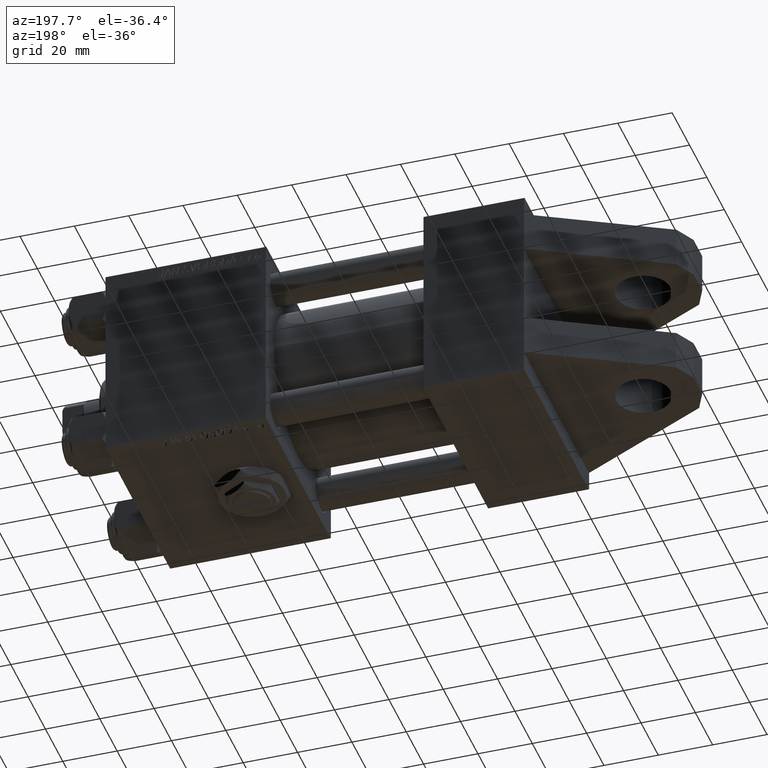
[diagram: clean part render]
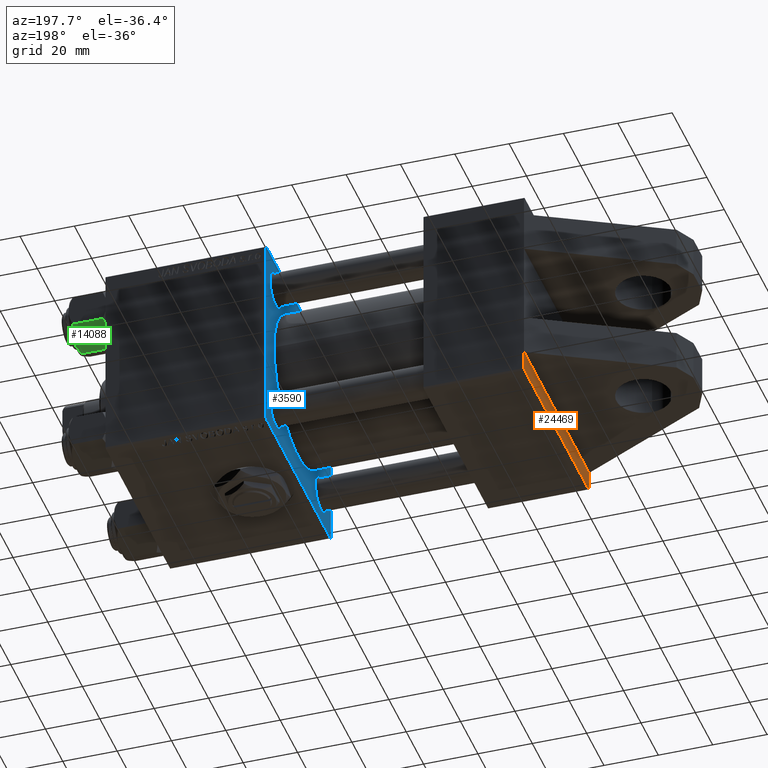
[diagram: same view with three faces highlighted in distinct colors, each labeled with its STEP entity id]
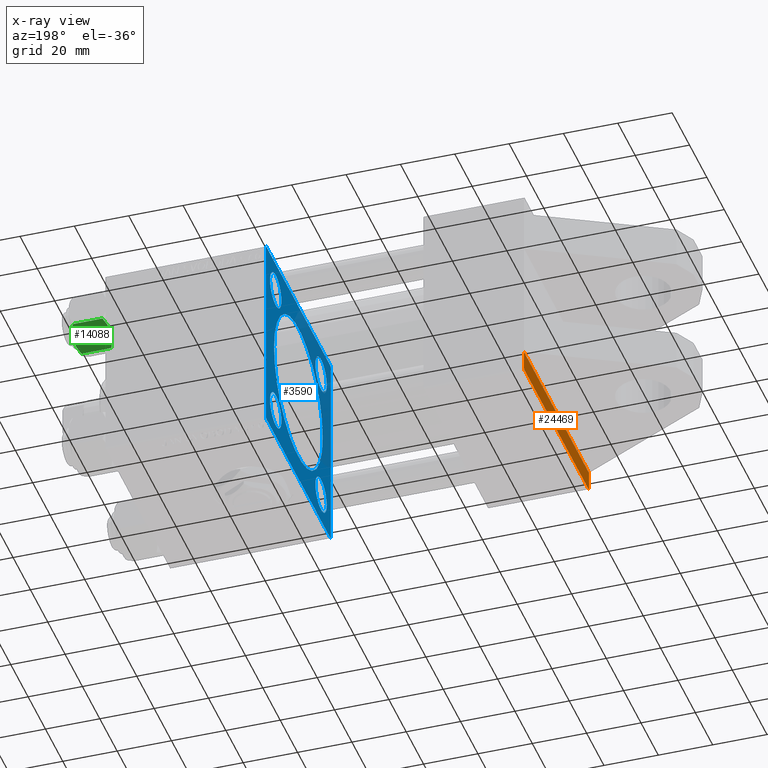
[diagram: x-ray of the same camera — body ghosted, the three highlighted faces saturated]
A machine part, auxiliary view with three faces highlighted in distinct colors.
The next image is the same camera in x-ray (body ghosted, the three faces saturated) — at least one of them is partly hidden behind the body in this view.
Their STEP definitions:

[orange] entity #24469 — the highlighted planar face has unit normal (-1, 0, -0).
#2164 = ORIENTED_EDGE ( 'NONE', *, *, #16810, .T. ) ;
#2198 = DIRECTION ( 'NONE',  ( -0.000000000000000000, -0.7071067811865474617, -0.7071067811865474617 ) ) ;
#2294 = ORIENTED_EDGE ( 'NONE', *, *, #35699, .F. ) ;
#2412 = EDGE_LOOP ( 'NONE', ( #40259, #2294, #2164, #19833, #47794, #49869 ) ) ;
#6769 = CARTESIAN_POINT ( 'NONE',  ( 0.000000000000000000, 0.000000000000000000, 0.000000000000000000 ) ) ;
#7034 = PLANE ( 'NONE',  #42660 ) ;
#11639 = CARTESIAN_POINT ( 'NONE',  ( 0.000000000000000000, 37.49999999999999289, 37.50000000000000000 ) ) ;
#11782 = CARTESIAN_POINT ( 'NONE',  ( 0.000000000000000000, 37.49999999999999289, 37.00000000000000000 ) ) ;
#12380 = CARTESIAN_POINT ( 'NONE',  ( 0.000000000000000000, 30.00000000000000000, 37.49999999999999289 ) ) ;
#12493 = VERTEX_POINT ( 'NONE', #25203 ) ;
#14072 = CARTESIAN_POINT ( 'NONE',  ( 0.000000000000000000, 30.00000000000000000, -37.50000000000000711 ) ) ;
#14389 = VERTEX_POINT ( 'NONE', #11782 ) ;
#14679 = VERTEX_POINT ( 'NONE', #15882 ) ;
#15503 = VECTOR ( 'NONE', #2198, 1000.000000000000114 ) ;
#15882 = CARTESIAN_POINT ( 'NONE',  ( 0.000000000000000000, 37.49999999999999289, -36.99999999999998579 ) ) ;
#16810 = EDGE_CURVE ( 'NONE', #38368, #14389, #24000, .T. ) ;
#19833 = ORIENTED_EDGE ( 'NONE', *, *, #31185, .T. ) ;
#21818 = EDGE_CURVE ( 'NONE', #12493, #34930, #48005, .T. ) ;
#22376 = DIRECTION ( 'NONE',  ( -1.000000000000000000, 0.000000000000000000, -0.000000000000000000 ) ) ;
#24000 = LINE ( 'NONE', #27391, #33429 ) ;
#24469 = ADVANCED_FACE ( 'NONE', ( #34840 ), #7034, .T. ) ;
#25203 = CARTESIAN_POINT ( 'NONE',  ( 0.000000000000000000, 30.00000000000000000, 37.50000000000000000 ) ) ;
#26419 = LINE ( 'NONE', #30582, #34639 ) ;
#27391 = CARTESIAN_POINT ( 'NONE',  ( 0.000000000000000000, 37.24999999999999289, 37.24999999999999289 ) ) ;
#28239 = DIRECTION ( 'NONE',  ( 0.000000000000000000, 0.000000000000000000, -1.000000000000000000 ) ) ;
#29218 = CARTESIAN_POINT ( 'NONE',  ( 0.000000000000000000, 37.24999999999998579, -37.24999999999998579 ) ) ;
#29682 = CARTESIAN_POINT ( 'NONE',  ( 0.000000000000000000, 37.49999999999999289, -37.50000000000000000 ) ) ;
#30265 = VERTEX_POINT ( 'NONE', #35990 ) ;
#30582 = CARTESIAN_POINT ( 'NONE',  ( 0.000000000000000000, 37.49999999999999289, 37.50000000000000000 ) ) ;
#30596 = EDGE_CURVE ( 'NONE', #30265, #34930, #33320, .T. ) ;
#31185 = EDGE_CURVE ( 'NONE', #14389, #14679, #47260, .T. ) ;
#31278 = VECTOR ( 'NONE', #33576, 1000.000000000000000 ) ;
#33320 = LINE ( 'NONE', #29682, #31278 ) ;
#33429 = VECTOR ( 'NONE', #39855, 1000.000000000000114 ) ;
#33576 = DIRECTION ( 'NONE',  ( 0.000000000000000000, -1.000000000000000000, -9.251858538542972814E-17 ) ) ;
#34632 = EDGE_CURVE ( 'NONE', #14679, #30265, #37789, .T. ) ;
#34639 = VECTOR ( 'NONE', #46187, 1000.000000000000000 ) ;
#34840 = FACE_OUTER_BOUND ( 'NONE', #2412, .T. ) ;
#34930 = VERTEX_POINT ( 'NONE', #14072 ) ;
#35080 = VECTOR ( 'NONE', #28239, 1000.000000000000000 ) ;
#35095 = DIRECTION ( 'NONE',  ( -0.000000000000000000, 0.000000000000000000, 1.000000000000000000 ) ) ;
#35699 = EDGE_CURVE ( 'NONE', #38368, #12493, #26419, .T. ) ;
#35990 = CARTESIAN_POINT ( 'NONE',  ( 0.000000000000000000, 36.99999999999997868, -37.50000000000000000 ) ) ;
#37789 = LINE ( 'NONE', #29218, #15503 ) ;
#38205 = CARTESIAN_POINT ( 'NONE',  ( 0.000000000000000000, 36.99999999999999289, 37.50000000000000000 ) ) ;
#38368 = VERTEX_POINT ( 'NONE', #38205 ) ;
#39184 = DIRECTION ( 'NONE',  ( 0.000000000000000000, 0.000000000000000000, -1.000000000000000000 ) ) ;
#39855 = DIRECTION ( 'NONE',  ( 0.000000000000000000, 0.7071067811865474617, -0.7071067811865474617 ) ) ;
#40259 = ORIENTED_EDGE ( 'NONE', *, *, #21818, .F. ) ;
#42660 = AXIS2_PLACEMENT_3D ( 'NONE', #6769, #22376, #35095 ) ;
#46187 = DIRECTION ( 'NONE',  ( 0.000000000000000000, -1.000000000000000000, -9.251858538542971581E-17 ) ) ;
#47260 = LINE ( 'NONE', #11639, #48693 ) ;
#47794 = ORIENTED_EDGE ( 'NONE', *, *, #34632, .T. ) ;
#48005 = LINE ( 'NONE', #12380, #35080 ) ;
#48693 = VECTOR ( 'NONE', #39184, 1000.000000000000000 ) ;
#49869 = ORIENTED_EDGE ( 'NONE', *, *, #30596, .T. ) ;

[blue] entity #3590 — the highlighted planar face has unit normal (-1, 0, 0).
#381 = DIRECTION ( 'NONE',  ( 1.000000000000000000, 0.000000000000000000, -0.000000000000000000 ) ) ;
#543 = VERTEX_POINT ( 'NONE', #41991 ) ;
#1125 = VECTOR ( 'NONE', #17124, 1000.000000000000000 ) ;
#1195 = FACE_BOUND ( 'NONE', #34460, .T. ) ;
#1279 = VERTEX_POINT ( 'NONE', #23147 ) ;
#1859 = CARTESIAN_POINT ( 'NONE',  ( 95.00000000000000000, 37.00000000000000000, -37.50000000000000000 ) ) ;
#2003 = VERTEX_POINT ( 'NONE', #13890 ) ;
#2508 = ORIENTED_EDGE ( 'NONE', *, *, #51390, .T. ) ;
#2919 = ORIENTED_EDGE ( 'NONE', *, *, #18931, .T. ) ;
#3093 = DIRECTION ( 'NONE',  ( 0.000000000000000000, -9.251858538542972814E-17, -1.000000000000000000 ) ) ;
#3188 = DIRECTION ( 'NONE',  ( 1.000000000000000000, 0.000000000000000000, -0.000000000000000000 ) ) ;
#3431 = DIRECTION ( 'NONE',  ( 0.000000000000000000, -0.7071067811865671127, 0.7071067811865279218 ) ) ;
#3590 = ADVANCED_FACE ( 'NONE', ( #44596, #1195, #24581, #12883, #24827, #8728 ), #13140, .T. ) ;
#4004 = EDGE_CURVE ( 'NONE', #15407, #23758, #16753, .T. ) ;
#4259 = VERTEX_POINT ( 'NONE', #14289 ) ;
#5076 = DIRECTION ( 'NONE',  ( -1.000000000000000000, -0.000000000000000000, 0.000000000000000000 ) ) ;
#5220 = AXIS2_PLACEMENT_3D ( 'NONE', #34937, #46654, #38315 ) ;
#5430 = ORIENTED_EDGE ( 'NONE', *, *, #21268, .T. ) ;
#5649 = ORIENTED_EDGE ( 'NONE', *, *, #8727, .T. ) ;
#5784 = VERTEX_POINT ( 'NONE', #13939 ) ;
#5975 = DIRECTION ( 'NONE',  ( 1.000000000000000000, 0.000000000000000000, -0.000000000000000000 ) ) ;
#5991 = AXIS2_PLACEMENT_3D ( 'NONE', #7003, #5975, #30410 ) ;
#6080 = AXIS2_PLACEMENT_3D ( 'NONE', #28665, #25000, #44518 ) ;
#6278 = DIRECTION ( 'NONE',  ( 1.000000000000000000, 0.000000000000000000, -0.000000000000000000 ) ) ;
#6804 = CARTESIAN_POINT ( 'NONE',  ( 95.00000000000000000, 26.14999999999999858, -26.15000000000000213 ) ) ;
#6846 = AXIS2_PLACEMENT_3D ( 'NONE', #12060, #381, #47416 ) ;
#6998 = CARTESIAN_POINT ( 'NONE',  ( 95.00000000000000000, 37.25000000000026290, -37.24999999999974420 ) ) ;
#7003 = CARTESIAN_POINT ( 'NONE',  ( 95.00000000000000000, 26.14999999999999858, 26.15000000000000213 ) ) ;
#7888 = DIRECTION ( 'NONE',  ( -0.000000000000000000, 0.7071067811865474617, 0.7071067811865474617 ) ) ;
#8064 = CARTESIAN_POINT ( 'NONE',  ( 95.00000000000000000, -3.469446951953614189E-15, 0.000000000000000000 ) ) ;
#8110 = VERTEX_POINT ( 'NONE', #30613 ) ;
#8285 = CARTESIAN_POINT ( 'NONE',  ( 95.00000000000000000, -26.14999999999999147, 19.64999999999999147 ) ) ;
#8318 = DIRECTION ( 'NONE',  ( 1.000000000000000000, 0.000000000000000000, 0.000000000000000000 ) ) ;
#8727 = EDGE_CURVE ( 'NONE', #23758, #15407, #35183, .T. ) ;
#8728 = FACE_OUTER_BOUND ( 'NONE', #49195, .T. ) ;
#9377 = CIRCLE ( 'NONE', #5220, 6.500000000000002665 ) ;
#10114 = VECTOR ( 'NONE', #3431, 1000.000000000000000 ) ;
#11200 = AXIS2_PLACEMENT_3D ( 'NONE', #13161, #48015, #16302 ) ;
#11288 = CARTESIAN_POINT ( 'NONE',  ( 95.00000000000000000, -37.24999999999997158, 37.24999999999997158 ) ) ;
#11869 = ORIENTED_EDGE ( 'NONE', *, *, #26417, .T. ) ;
#12060 = CARTESIAN_POINT ( 'NONE',  ( 95.00000000000000000, -26.15000000000000213, -26.15000000000000213 ) ) ;
#12883 = FACE_BOUND ( 'NONE', #43694, .T. ) ;
#12968 = CARTESIAN_POINT ( 'NONE',  ( 95.00000000000000000, 37.50000000000000000, 37.49999999999999289 ) ) ;
#13140 = PLANE ( 'NONE',  #18410 ) ;
#13161 = CARTESIAN_POINT ( 'NONE',  ( 95.00000000000000000, 26.14999999999999858, 26.15000000000000213 ) ) ;
#13338 = VERTEX_POINT ( 'NONE', #31296 ) ;
#13682 = CARTESIAN_POINT ( 'NONE',  ( 95.00000000000000000, 37.50000000000000000, 37.49999999999999289 ) ) ;
#13709 = ORIENTED_EDGE ( 'NONE', *, *, #14977, .T. ) ;
#13890 = CARTESIAN_POINT ( 'NONE',  ( 95.00000000000000000, 26.14999999999999858, 19.64999999999999858 ) ) ;
#13939 = CARTESIAN_POINT ( 'NONE',  ( 95.00000000000000000, -26.15000000000000213, -32.65000000000001279 ) ) ;
#14289 = CARTESIAN_POINT ( 'NONE',  ( 95.00000000000000000, -36.99999999999998579, -37.50000000000000000 ) ) ;
#14317 = EDGE_CURVE ( 'NONE', #20604, #21130, #23744, .T. ) ;
#14322 = EDGE_CURVE ( 'NONE', #43280, #8110, #35686, .T. ) ;
#14870 = DIRECTION ( 'NONE',  ( 0.000000000000000000, 0.000000000000000000, 1.000000000000000000 ) ) ;
#14977 = EDGE_CURVE ( 'NONE', #27776, #29657, #39215, .T. ) ;
#15094 = VECTOR ( 'NONE', #7888, 1000.000000000000114 ) ;
#15321 = VECTOR ( 'NONE', #44370, 1000.000000000000000 ) ;
#15407 = VERTEX_POINT ( 'NONE', #27315 ) ;
#16302 = DIRECTION ( 'NONE',  ( 0.000000000000000000, 0.000000000000000000, 1.000000000000000000 ) ) ;
#16753 = CIRCLE ( 'NONE', #45805, 6.500000000000008882 ) ;
#17124 = DIRECTION ( 'NONE',  ( 0.000000000000000000, -1.000000000000000000, -1.850371707708594316E-16 ) ) ;
#17696 = EDGE_CURVE ( 'NONE', #41126, #17884, #44266, .T. ) ;
#17884 = VERTEX_POINT ( 'NONE', #43704 ) ;
#18208 = CARTESIAN_POINT ( 'NONE',  ( 95.00000000000000000, 26.14999999999999858, 32.65000000000001279 ) ) ;
#18382 = EDGE_CURVE ( 'NONE', #49281, #1279, #9377, .T. ) ;
#18410 = AXIS2_PLACEMENT_3D ( 'NONE', #28742, #5076, #36770 ) ;
#18931 = EDGE_CURVE ( 'NONE', #4259, #543, #30215, .T. ) ;
#19079 = CARTESIAN_POINT ( 'NONE',  ( 95.00000000000000000, 37.00000000000000000, 37.49999999999999289 ) ) ;
#19425 = EDGE_CURVE ( 'NONE', #43280, #21130, #37627, .T. ) ;
#19779 = ORIENTED_EDGE ( 'NONE', *, *, #28252, .F. ) ;
#19828 = VERTEX_POINT ( 'NONE', #18208 ) ;
#20604 = VERTEX_POINT ( 'NONE', #50672 ) ;
#21130 = VERTEX_POINT ( 'NONE', #27086 ) ;
#21268 = EDGE_CURVE ( 'NONE', #2003, #19828, #37529, .T. ) ;
#22836 = CARTESIAN_POINT ( 'NONE',  ( 95.00000000000000000, -37.50000000000000000, 37.49999999999997868 ) ) ;
#22852 = AXIS2_PLACEMENT_3D ( 'NONE', #8064, #8318, #24164 ) ;
#23147 = CARTESIAN_POINT ( 'NONE',  ( 95.00000000000000000, -26.14999999999999147, 32.64999999999999858 ) ) ;
#23577 = AXIS2_PLACEMENT_3D ( 'NONE', #27099, #26838, #34883 ) ;
#23691 = VECTOR ( 'NONE', #3093, 1000.000000000000000 ) ;
#23744 = LINE ( 'NONE', #11288, #15094 ) ;
#23758 = VERTEX_POINT ( 'NONE', #25639 ) ;
#24164 = DIRECTION ( 'NONE',  ( 0.000000000000000000, 0.000000000000000000, -1.000000000000000000 ) ) ;
#24581 = FACE_BOUND ( 'NONE', #31823, .T. ) ;
#24827 = FACE_BOUND ( 'NONE', #35732, .T. ) ;
#25000 = DIRECTION ( 'NONE',  ( 1.000000000000000000, 0.000000000000000000, 0.000000000000000000 ) ) ;
#25627 = EDGE_CURVE ( 'NONE', #29657, #4259, #30395, .T. ) ;
#25639 = CARTESIAN_POINT ( 'NONE',  ( 95.00000000000000000, 26.14999999999999858, -19.64999999999999503 ) ) ;
#26417 = EDGE_CURVE ( 'NONE', #19828, #2003, #32774, .T. ) ;
#26708 = VECTOR ( 'NONE', #47672, 1000.000000000000114 ) ;
#26838 = DIRECTION ( 'NONE',  ( 1.000000000000000000, 0.000000000000000000, -0.000000000000000000 ) ) ;
#27086 = CARTESIAN_POINT ( 'NONE',  ( 95.00000000000000000, -36.99999999999997158, 37.49999999999997868 ) ) ;
#27099 = CARTESIAN_POINT ( 'NONE',  ( 95.00000000000000000, 26.14999999999999858, -26.15000000000000213 ) ) ;
#27210 = ORIENTED_EDGE ( 'NONE', *, *, #14317, .T. ) ;
#27233 = ORIENTED_EDGE ( 'NONE', *, *, #19425, .F. ) ;
#27315 = CARTESIAN_POINT ( 'NONE',  ( 95.00000000000000000, 26.14999999999999858, -32.65000000000001279 ) ) ;
#27388 = CARTESIAN_POINT ( 'NONE',  ( 95.00000000000000000, 37.25000000000000000, 37.25000000000000000 ) ) ;
#27517 = DIRECTION ( 'NONE',  ( -0.000000000000000000, -0.7071067811865425767, -0.7071067811865525687 ) ) ;
#27776 = VERTEX_POINT ( 'NONE', #42971 ) ;
#28146 = EDGE_CURVE ( 'NONE', #17884, #41126, #45266, .T. ) ;
#28252 = EDGE_CURVE ( 'NONE', #20604, #543, #38417, .T. ) ;
#28665 = CARTESIAN_POINT ( 'NONE',  ( 95.00000000000000000, -3.469446951953614189E-15, 0.000000000000000000 ) ) ;
#28742 = CARTESIAN_POINT ( 'NONE',  ( 95.00000000000000000, 0.000000000000000000, 0.000000000000000000 ) ) ;
#29618 = ORIENTED_EDGE ( 'NONE', *, *, #25627, .T. ) ;
#29657 = VERTEX_POINT ( 'NONE', #1859 ) ;
#30215 = LINE ( 'NONE', #39026, #10114 ) ;
#30285 = ORIENTED_EDGE ( 'NONE', *, *, #4004, .T. ) ;
#30395 = LINE ( 'NONE', #42341, #44332 ) ;
#30410 = DIRECTION ( 'NONE',  ( 0.000000000000000000, 0.000000000000000000, 1.000000000000000000 ) ) ;
#30453 = CARTESIAN_POINT ( 'NONE',  ( 95.00000000000000000, -26.15000000000000213, -26.15000000000000213 ) ) ;
#30613 = CARTESIAN_POINT ( 'NONE',  ( 95.00000000000000000, 37.50000000000000000, 36.99999999999999289 ) ) ;
#31296 = CARTESIAN_POINT ( 'NONE',  ( 95.00000000000000000, -26.15000000000000213, -19.64999999999999503 ) ) ;
#31538 = DIRECTION ( 'NONE',  ( 0.000000000000000000, 0.000000000000000000, 1.000000000000000000 ) ) ;
#31823 = EDGE_LOOP ( 'NONE', ( #5649, #30285 ) ) ;
#32177 = EDGE_CURVE ( 'NONE', #1279, #49281, #47902, .T. ) ;
#32774 = CIRCLE ( 'NONE', #11200, 6.500000000000002665 ) ;
#32963 = ORIENTED_EDGE ( 'NONE', *, *, #28146, .T. ) ;
#33430 = CIRCLE ( 'NONE', #6846, 6.500000000000008882 ) ;
#33849 = ORIENTED_EDGE ( 'NONE', *, *, #32177, .T. ) ;
#34460 = EDGE_LOOP ( 'NONE', ( #11869, #5430 ) ) ;
#34798 = DIRECTION ( 'NONE',  ( 0.000000000000000000, -1.000000000000000000, 0.000000000000000000 ) ) ;
#34883 = DIRECTION ( 'NONE',  ( 0.000000000000000000, 0.000000000000000000, 1.000000000000000000 ) ) ;
#34937 = CARTESIAN_POINT ( 'NONE',  ( 95.00000000000000000, -26.14999999999999147, 26.14999999999999503 ) ) ;
#35183 = CIRCLE ( 'NONE', #23577, 6.500000000000008882 ) ;
#35686 = LINE ( 'NONE', #27388, #26708 ) ;
#35732 = EDGE_LOOP ( 'NONE', ( #39749, #32963 ) ) ;
#35829 = VECTOR ( 'NONE', #27517, 999.9999999999998863 ) ;
#36192 = DIRECTION ( 'NONE',  ( 1.000000000000000000, 0.000000000000000000, -0.000000000000000000 ) ) ;
#36770 = DIRECTION ( 'NONE',  ( 0.000000000000000000, 0.000000000000000000, 1.000000000000000000 ) ) ;
#36804 = LINE ( 'NONE', #13682, #15321 ) ;
#36824 = CIRCLE ( 'NONE', #41805, 6.500000000000008882 ) ;
#37529 = CIRCLE ( 'NONE', #5991, 6.500000000000002665 ) ;
#37627 = LINE ( 'NONE', #12968, #1125 ) ;
#37940 = AXIS2_PLACEMENT_3D ( 'NONE', #39320, #36192, #31538 ) ;
#38315 = DIRECTION ( 'NONE',  ( 0.000000000000000000, 0.000000000000000000, 1.000000000000000000 ) ) ;
#38417 = LINE ( 'NONE', #22836, #23691 ) ;
#39026 = CARTESIAN_POINT ( 'NONE',  ( 95.00000000000000000, -37.24999999999896261, -37.25000000000103029 ) ) ;
#39215 = LINE ( 'NONE', #6998, #35829 ) ;
#39320 = CARTESIAN_POINT ( 'NONE',  ( 95.00000000000000000, -26.14999999999999147, 26.14999999999999503 ) ) ;
#39749 = ORIENTED_EDGE ( 'NONE', *, *, #17696, .T. ) ;
#40281 = ORIENTED_EDGE ( 'NONE', *, *, #18382, .T. ) ;
#41102 = CARTESIAN_POINT ( 'NONE',  ( 95.00000000000000000, -3.469446951953614189E-15, 28.00000000000000000 ) ) ;
#41126 = VERTEX_POINT ( 'NONE', #41102 ) ;
#41710 = ORIENTED_EDGE ( 'NONE', *, *, #44122, .T. ) ;
#41805 = AXIS2_PLACEMENT_3D ( 'NONE', #30453, #6278, #45542 ) ;
#41991 = CARTESIAN_POINT ( 'NONE',  ( 95.00000000000000000, -37.50000000000000711, -37.00000000000000711 ) ) ;
#42341 = CARTESIAN_POINT ( 'NONE',  ( 95.00000000000000000, 37.50000000000000000, -37.50000000000000000 ) ) ;
#42971 = CARTESIAN_POINT ( 'NONE',  ( 95.00000000000000000, 37.50000000000000000, -36.99999999999999289 ) ) ;
#43280 = VERTEX_POINT ( 'NONE', #19079 ) ;
#43694 = EDGE_LOOP ( 'NONE', ( #41710, #43857 ) ) ;
#43704 = CARTESIAN_POINT ( 'NONE',  ( 95.00000000000000000, -4.043591434102586818E-17, -28.00000000000000000 ) ) ;
#43857 = ORIENTED_EDGE ( 'NONE', *, *, #46788, .T. ) ;
#44122 = EDGE_CURVE ( 'NONE', #13338, #5784, #33430, .T. ) ;
#44266 = CIRCLE ( 'NONE', #6080, 28.00000000000000000 ) ;
#44332 = VECTOR ( 'NONE', #34798, 1000.000000000000000 ) ;
#44370 = DIRECTION ( 'NONE',  ( 0.000000000000000000, 0.000000000000000000, -1.000000000000000000 ) ) ;
#44518 = DIRECTION ( 'NONE',  ( 0.000000000000000000, 0.000000000000000000, -1.000000000000000000 ) ) ;
#44596 = FACE_BOUND ( 'NONE', #48993, .T. ) ;
#45266 = CIRCLE ( 'NONE', #22852, 28.00000000000000000 ) ;
#45542 = DIRECTION ( 'NONE',  ( 0.000000000000000000, 0.000000000000000000, 1.000000000000000000 ) ) ;
#45805 = AXIS2_PLACEMENT_3D ( 'NONE', #6804, #3188, #14870 ) ;
#46654 = DIRECTION ( 'NONE',  ( 1.000000000000000000, 0.000000000000000000, -0.000000000000000000 ) ) ;
#46788 = EDGE_CURVE ( 'NONE', #5784, #13338, #36824, .T. ) ;
#47416 = DIRECTION ( 'NONE',  ( 0.000000000000000000, 0.000000000000000000, 1.000000000000000000 ) ) ;
#47672 = DIRECTION ( 'NONE',  ( 0.000000000000000000, 0.7071067811865474617, -0.7071067811865474617 ) ) ;
#47710 = ORIENTED_EDGE ( 'NONE', *, *, #14322, .T. ) ;
#47902 = CIRCLE ( 'NONE', #37940, 6.500000000000002665 ) ;
#48015 = DIRECTION ( 'NONE',  ( 1.000000000000000000, 0.000000000000000000, -0.000000000000000000 ) ) ;
#48993 = EDGE_LOOP ( 'NONE', ( #33849, #40281 ) ) ;
#49195 = EDGE_LOOP ( 'NONE', ( #29618, #2919, #19779, #27210, #27233, #47710, #2508, #13709 ) ) ;
#49281 = VERTEX_POINT ( 'NONE', #8285 ) ;
#50672 = CARTESIAN_POINT ( 'NONE',  ( 95.00000000000000000, -37.50000000000000000, 36.99999999999995026 ) ) ;
#51390 = EDGE_CURVE ( 'NONE', #8110, #27776, #36804, .T. ) ;

[green] entity #14088 — the highlighted planar face has unit normal (0, -0.5, 0.866).
#169 = CARTESIAN_POINT ( 'NONE',  ( -5.359707691559671083, 10.06321519197517844, -12.66836134619534526 ) ) ;
#365 = EDGE_LOOP ( 'NONE', ( #1803, #15195, #7445, #26958, #21770, #23935 ) ) ;
#790 = B_SPLINE_CURVE_WITH_KNOTS ( 'NONE', 3,
 ( #12465, #28326, #37646, #1039, #2059, #36875, #5691, #9330, #25700 ),
 .UNSPECIFIED., .F., .F.,
 ( 4, 2, 1, 2, 4 ),
 ( 0.02074012592819901579, 0.02149589804477577970, 0.02225167016135254361, 0.02376321439450607489, 0.02678630286081313400 ),
 .UNSPECIFIED. ) ;
#1039 = CARTESIAN_POINT ( 'NONE',  ( -1.018274738099083310, 10.06321519197517667, -0.04822742080070820114 ) ) ;
#1803 = ORIENTED_EDGE ( 'NONE', *, *, #14014, .F. ) ;
#2059 = CARTESIAN_POINT ( 'NONE',  ( -1.772424303831120929, 10.06321519197518022, -0.1338870921722370433 ) ) ;
#2813 = CARTESIAN_POINT ( 'NONE',  ( 1.018274738099083976, 10.06321519197517844, -13.95177257919928948 ) ) ;
#3076 = CARTESIAN_POINT ( 'NONE',  ( 3.960942496020600778, 10.06321519197518022, -13.28842716763895737 ) ) ;
#3083 = VERTEX_POINT ( 'NONE', #31036 ) ;
#4309 = CARTESIAN_POINT ( 'NONE',  ( -4.900668367960792082, 10.06321519197518199, -12.87844331629022676 ) ) ;
#4725 = EDGE_CURVE ( 'NONE', #22115, #13094, #11874, .T. ) ;
#5691 = CARTESIAN_POINT ( 'NONE',  ( -3.960942496020600778, 10.06321519197518199, -0.7115728323610410744 ) ) ;
#5843 = PLANE ( 'NONE',  #29205 ) ;
#7445 = ORIENTED_EDGE ( 'NONE', *, *, #27213, .F. ) ;
#7715 = DIRECTION ( 'NONE',  ( -0.000000000000000000, -0.000000000000000000, 1.000000000000000000 ) ) ;
#7719 = CARTESIAN_POINT ( 'NONE',  ( 2.508586450168038162, 10.06321519197517844, -13.70242473679676642 ) ) ;
#8726 = DIRECTION ( 'NONE',  ( 0.000000000000000000, -1.000000000000000000, 0.000000000000000000 ) ) ;
#9106 = B_SPLINE_CURVE_WITH_KNOTS ( 'NONE', 3,
 ( #38923, #11629, #11119, #2813, #39440, #7719, #3076, #18919, #26710 ),
 .UNSPECIFIED., .F., .F.,
 ( 4, 2, 1, 2, 4 ),
 ( 0.02074012592819901232, 0.02149589804477577970, 0.02225167016135254361, 0.02376321439450607489, 0.02678630286081313400 ),
 .UNSPECIFIED. ) ;
#9330 = CARTESIAN_POINT ( 'NONE',  ( -4.908816193182376608, 10.06321519197518199, -1.106192904616006167 ) ) ;
#9375 = CARTESIAN_POINT ( 'NONE',  ( -5.809999999999997833, 10.06321519197518022, -12.44321519197518455 ) ) ;
#10354 = CARTESIAN_POINT ( 'NONE',  ( 5.359707691559672860, 10.06321519197517844, -1.331638653804651629 ) ) ;
#11119 = CARTESIAN_POINT ( 'NONE',  ( 0.5112014849988876231, 10.06321519197518022, -13.99019602057108536 ) ) ;
#11356 = CARTESIAN_POINT ( 'NONE',  ( -3.474497094393252716, 10.06321519197518022, -13.42730390989572342 ) ) ;
#11629 = CARTESIAN_POINT ( 'NONE',  ( 0.2543996698847478255, 10.06321519197517844, -14.00000000000000000 ) ) ;
#11874 = LINE ( 'NONE', #50881, #28408 ) ;
#12465 = CARTESIAN_POINT ( 'NONE',  ( 0.000000000000000000, 10.06321519197518022, 0.000000000000000000 ) ) ;
#13094 = VERTEX_POINT ( 'NONE', #23041 ) ;
#13742 = B_SPLINE_CURVE_WITH_KNOTS ( 'NONE', 3,
 ( #19897, #169, #4309, #40176, #11356, #16277, #16011, #31875 ),
 .UNSPECIFIED., .F., .F.,
 ( 4, 2, 2, 4 ),
 ( 0.01467889604968878464, 0.01619420351931634069, 0.01770951098894389675, 0.02074012592819901232 ),
 .UNSPECIFIED. ) ;
#14014 = EDGE_CURVE ( 'NONE', #22115, #3083, #13742, .T. ) ;
#14088 = ADVANCED_FACE ( 'NONE', ( #32903 ), #5843, .F. ) ;
#14251 = DIRECTION ( 'NONE',  ( -0.000000000000000000, -0.000000000000000000, 1.000000000000000000 ) ) ;
#15195 = ORIENTED_EDGE ( 'NONE', *, *, #4725, .T. ) ;
#16011 = CARTESIAN_POINT ( 'NONE',  ( -1.020132157807625006, 10.06321519197517844, -13.99999999999999822 ) ) ;
#16277 = CARTESIAN_POINT ( 'NONE',  ( -2.013954290287967019, 10.06321519197518022, -13.84298883202399821 ) ) ;
#18183 = CARTESIAN_POINT ( 'NONE',  ( 5.810000000000000497, 10.06321519197518022, -1.556784808024815892 ) ) ;
#18919 = CARTESIAN_POINT ( 'NONE',  ( 4.908816193182378385, 10.06321519197517667, -12.89380709538398939 ) ) ;
#19897 = CARTESIAN_POINT ( 'NONE',  ( -5.809999999999997833, 10.06321519197518022, -12.44321519197518455 ) ) ;
#20655 = B_SPLINE_CURVE_WITH_KNOTS ( 'NONE', 3,
 ( #23082, #10354, #26211, #22311, #38675, #22559, #42842, #30371 ),
 .UNSPECIFIED., .F., .F.,
 ( 4, 2, 2, 4 ),
 ( 0.01467889604968878811, 0.01619420351931634416, 0.01770951098894390369, 0.02074012592819901579 ),
 .UNSPECIFIED. ) ;
#21693 = DIRECTION ( 'NONE',  ( 0.000000000000000000, -0.000000000000000000, -1.000000000000000000 ) ) ;
#21770 = ORIENTED_EDGE ( 'NONE', *, *, #34242, .F. ) ;
#22115 = VERTEX_POINT ( 'NONE', #9375 ) ;
#22311 = CARTESIAN_POINT ( 'NONE',  ( 3.958929922320420403, 10.06321519197517844, -0.7421398502353995230 ) ) ;
#22559 = CARTESIAN_POINT ( 'NONE',  ( 2.013954290287966575, 10.06321519197518022, -0.1570111679759973733 ) ) ;
#23041 = CARTESIAN_POINT ( 'NONE',  ( -5.809999999999997833, 10.06321519197518022, -1.556784808024814115 ) ) ;
#23082 = CARTESIAN_POINT ( 'NONE',  ( 5.810000000000000497, 10.06321519197518022, -1.556784808024815892 ) ) ;
#23935 = ORIENTED_EDGE ( 'NONE', *, *, #40318, .F. ) ;
#25700 = CARTESIAN_POINT ( 'NONE',  ( -5.809999999999997833, 10.06321519197518022, -1.556784808024814115 ) ) ;
#26211 = CARTESIAN_POINT ( 'NONE',  ( 4.900668367960795635, 10.06321519197518199, -1.121556683709773239 ) ) ;
#26710 = CARTESIAN_POINT ( 'NONE',  ( 5.810000000000000497, 10.06321519197518022, -12.44321519197518278 ) ) ;
#26958 = ORIENTED_EDGE ( 'NONE', *, *, #27437, .F. ) ;
#27213 = EDGE_CURVE ( 'NONE', #30729, #13094, #790, .T. ) ;
#27437 = EDGE_CURVE ( 'NONE', #33355, #30729, #20655, .T. ) ;
#28326 = CARTESIAN_POINT ( 'NONE',  ( -0.2543996698847471039, 10.06321519197517844, 1.789568859311522647E-15 ) ) ;
#28408 = VECTOR ( 'NONE', #7715, 1000.000000000000000 ) ;
#29205 = AXIS2_PLACEMENT_3D ( 'NONE', #45369, #8726, #21693 ) ;
#30371 = CARTESIAN_POINT ( 'NONE',  ( 0.000000000000000000, 10.06321519197518022, 0.000000000000000000 ) ) ;
#30729 = VERTEX_POINT ( 'NONE', #42388 ) ;
#31036 = CARTESIAN_POINT ( 'NONE',  ( 0.000000000000000000, 10.06321519197518022, -14.00000000000000000 ) ) ;
#31875 = CARTESIAN_POINT ( 'NONE',  ( 0.000000000000000000, 10.06321519197518022, -14.00000000000000000 ) ) ;
#32903 = FACE_OUTER_BOUND ( 'NONE', #365, .T. ) ;
#33355 = VERTEX_POINT ( 'NONE', #18183 ) ;
#34242 = EDGE_CURVE ( 'NONE', #48575, #33355, #46490, .T. ) ;
#36875 = CARTESIAN_POINT ( 'NONE',  ( -2.508586450168038162, 10.06321519197518199, -0.2975752632032285794 ) ) ;
#37646 = CARTESIAN_POINT ( 'NONE',  ( -0.5112014849988875120, 10.06321519197518199, -0.009803979428912690947 ) ) ;
#37912 = CARTESIAN_POINT ( 'NONE',  ( 5.810000000000000497, 10.06321519197518022, -14.00000000000000000 ) ) ;
#38675 = CARTESIAN_POINT ( 'NONE',  ( 3.474497094393252272, 10.06321519197518022, -0.5726960901042741359 ) ) ;
#38713 = VECTOR ( 'NONE', #14251, 1000.000000000000000 ) ;
#38923 = CARTESIAN_POINT ( 'NONE',  ( 0.000000000000000000, 10.06321519197518022, -14.00000000000000000 ) ) ;
#39440 = CARTESIAN_POINT ( 'NONE',  ( 1.772424303831127146, 10.06321519197517667, -13.86611290782775896 ) ) ;
#40176 = CARTESIAN_POINT ( 'NONE',  ( -3.958929922320416850, 10.06321519197517844, -13.25786014976459803 ) ) ;
#40318 = EDGE_CURVE ( 'NONE', #3083, #48575, #9106, .T. ) ;
#42388 = CARTESIAN_POINT ( 'NONE',  ( 0.000000000000000000, 10.06321519197518022, 0.000000000000000000 ) ) ;
#42842 = CARTESIAN_POINT ( 'NONE',  ( 1.020132157807626561, 10.06321519197517844, 1.504330514323637599E-15 ) ) ;
#45369 = CARTESIAN_POINT ( 'NONE',  ( -5.809999999999997833, 10.06321519197518022, -14.00000000000000000 ) ) ;
#46490 = LINE ( 'NONE', #37912, #38713 ) ;
#48575 = VERTEX_POINT ( 'NONE', #50287 ) ;
#50287 = CARTESIAN_POINT ( 'NONE',  ( 5.810000000000000497, 10.06321519197518022, -12.44321519197518278 ) ) ;
#50881 = CARTESIAN_POINT ( 'NONE',  ( -5.809999999999997833, 10.06321519197518022, -14.00000000000000000 ) ) ;